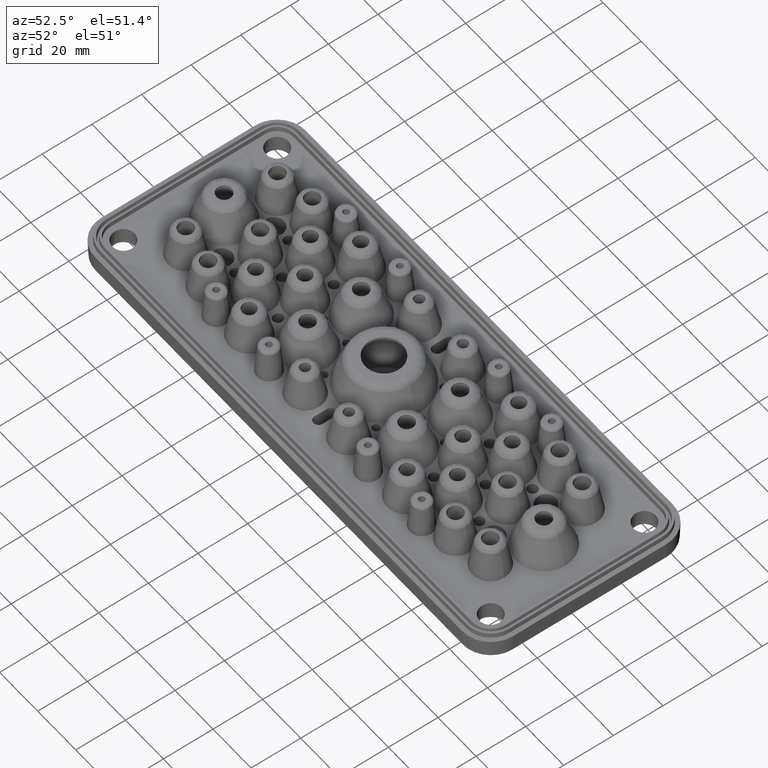
[diagram: clean part render]
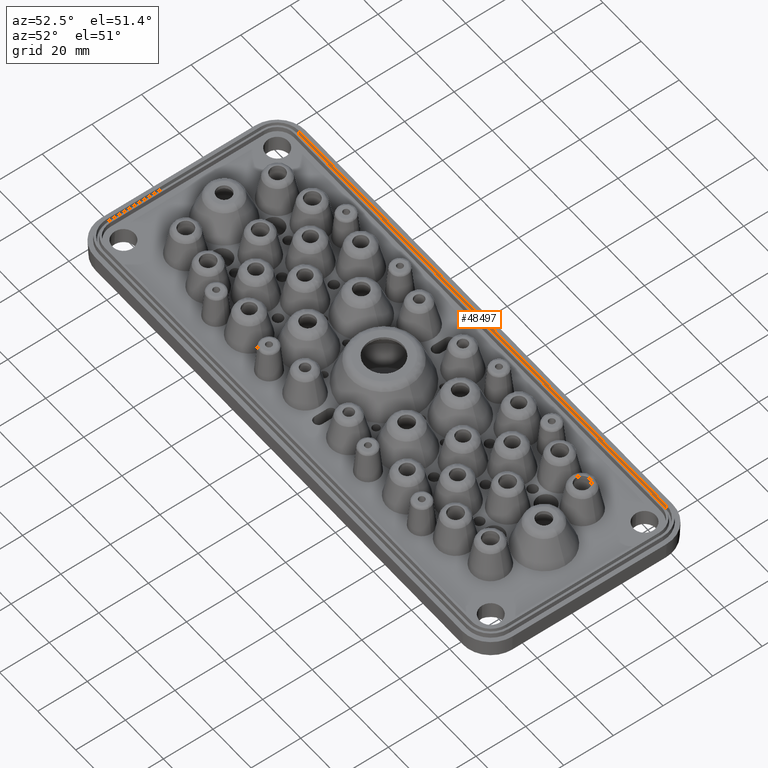
[diagram: same view with one face highlighted and labeled with its STEP entity id]
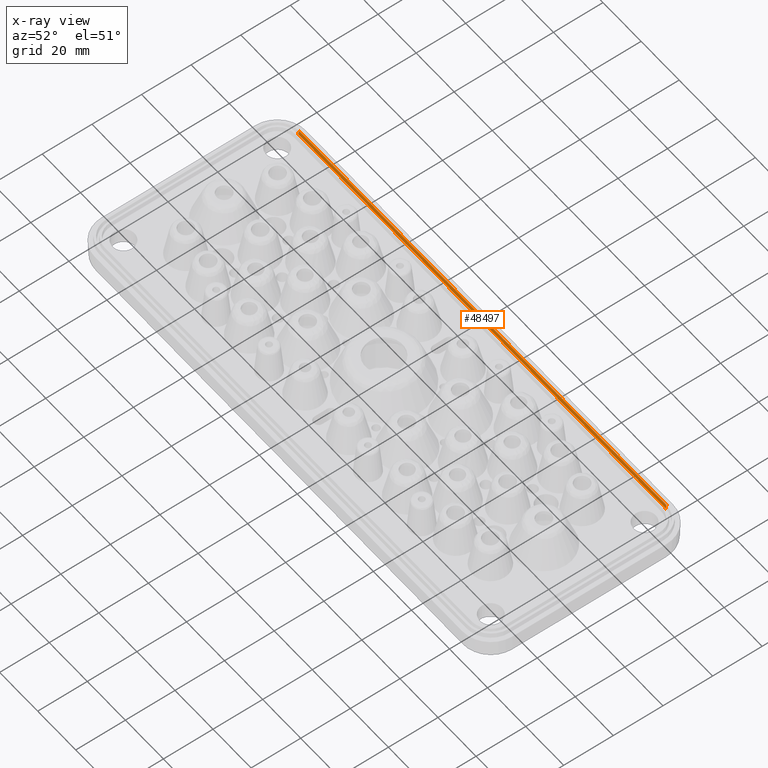
[diagram: x-ray of the same camera — body ghosted, the highlighted face saturated]
A machine part, auxiliary view. The second image highlights one B-rep face of the part: STEP entity #48497.
The next image is the same camera in x-ray: the body ghosted, the highlighted face saturated — about 0% of this face is hidden behind the body in this view.
In plain terms, the highlighted planar face has unit normal (0, -0.9945, 0.1045).
Its self-contained STEP definition (entity closure, byte-faithful):
#1700 = DIRECTION ( 'NONE',  ( 0.0000000000000000000, 0.1045284632676523600, 0.9945218953682735100 ) ) ;
#4673 = EDGE_CURVE ( 'NONE', #7121, #41430, #18839, .T. ) ;
#5076 = CARTESIAN_POINT ( 'NONE',  ( 29.18648322367878100, -19.66030365296027300, 2.000000000000000000 ) ) ;
#7121 = VERTEX_POINT ( 'NONE', #51242 ) ;
#8733 = EDGE_CURVE ( 'NONE', #7121, #11401, #23004, .T. ) ;
#11401 = VERTEX_POINT ( 'NONE', #5076 ) ;
#11716 = DIRECTION ( 'NONE',  ( -1.000000000000000000, -1.224606353822377300E-016, 0.0000000000000000000 ) ) ;
#12559 = EDGE_CURVE ( 'NONE', #19753, #41430, #40085, .T. ) ;
#13302 = ORIENTED_EDGE ( 'NONE', *, *, #4673, .T. ) ;
#14355 = VECTOR ( 'NONE', #27430, 1000.000000000000000 ) ;
#18839 = LINE ( 'NONE', #33281, #30432 ) ;
#19753 = VERTEX_POINT ( 'NONE', #31456 ) ;
#23004 = LINE ( 'NONE', #31450, #14355 ) ;
#23581 = EDGE_LOOP ( 'NONE', ( #31870, #45720, #29302, #13302 ) ) ;
#27430 = DIRECTION ( 'NONE',  ( 1.000000000000000000, 1.224606353822377300E-016, 0.0000000000000000000 ) ) ;
#29302 = ORIENTED_EDGE ( 'NONE', *, *, #8733, .F. ) ;
#29781 = DIRECTION ( 'NONE',  ( 1.217897832083461300E-016, -0.9945218953682735100, 0.1045284632676523600 ) ) ;
#30208 = VECTOR ( 'NONE', #54392, 1000.000000000000100 ) ;
#30432 = VECTOR ( 'NONE', #41849, 1000.000000000000100 ) ;
#30896 = CARTESIAN_POINT ( 'NONE',  ( 29.18648322367878100, -19.66030365296027300, 2.000000000000000000 ) ) ;
#31450 = CARTESIAN_POINT ( 'NONE',  ( -22.18851677632124000, -19.66030365296027300, 2.000000000000000000 ) ) ;
#31456 = CARTESIAN_POINT ( 'NONE',  ( 29.18648322367878100, -19.84227676817049300, 0.2686414610197047600 ) ) ;
#31870 = ORIENTED_EDGE ( 'NONE', *, *, #12559, .F. ) ;
#33281 = CARTESIAN_POINT ( 'NONE',  ( -163.8135167763211900, -19.66030365296030200, 2.000000000000000000 ) ) ;
#34208 = CARTESIAN_POINT ( 'NONE',  ( -19.06351677632121500, -19.84227676817050000, 0.2686414610197056500 ) ) ;
#40085 = LINE ( 'NONE', #34208, #58281 ) ;
#41430 = VERTEX_POINT ( 'NONE', #55003 ) ;
#41849 = DIRECTION ( 'NONE',  ( 0.0000000000000000000, -0.1045284632676523500, -0.9945218953682735100 ) ) ;
#43195 = EDGE_CURVE ( 'NONE', #11401, #19753, #55589, .T. ) ;
#45720 = ORIENTED_EDGE ( 'NONE', *, *, #43195, .F. ) ;
#48497 = ADVANCED_FACE ( 'NONE', ( #51820 ), #52101, .T. ) ;
#51242 = CARTESIAN_POINT ( 'NONE',  ( -163.8135167763211900, -19.66030365296030200, 2.000000000000000000 ) ) ;
#51820 = FACE_OUTER_BOUND ( 'NONE', #23581, .T. ) ;
#52101 = PLANE ( 'NONE',  #58104 ) ;
#54392 = DIRECTION ( 'NONE',  ( 0.0000000000000000000, -0.1045284632676523500, -0.9945218953682735100 ) ) ;
#55003 = CARTESIAN_POINT ( 'NONE',  ( -163.8135167763211900, -19.84227676817052100, 0.2686414610197065400 ) ) ;
#55589 = LINE ( 'NONE', #30896, #30208 ) ;
#57981 = CARTESIAN_POINT ( 'NONE',  ( 29.18648322367878100, -19.66030365296027300, 2.000000000000000000 ) ) ;
#58104 = AXIS2_PLACEMENT_3D ( 'NONE', #57981, #29781, #1700 ) ;
#58281 = VECTOR ( 'NONE', #11716, 1000.000000000000000 ) ;